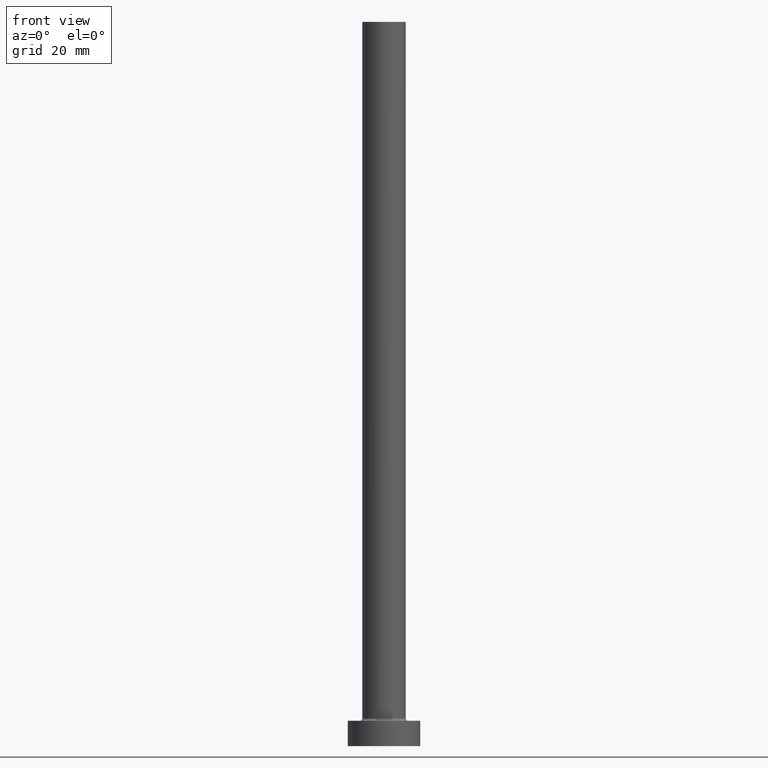
[diagram: clean part render]
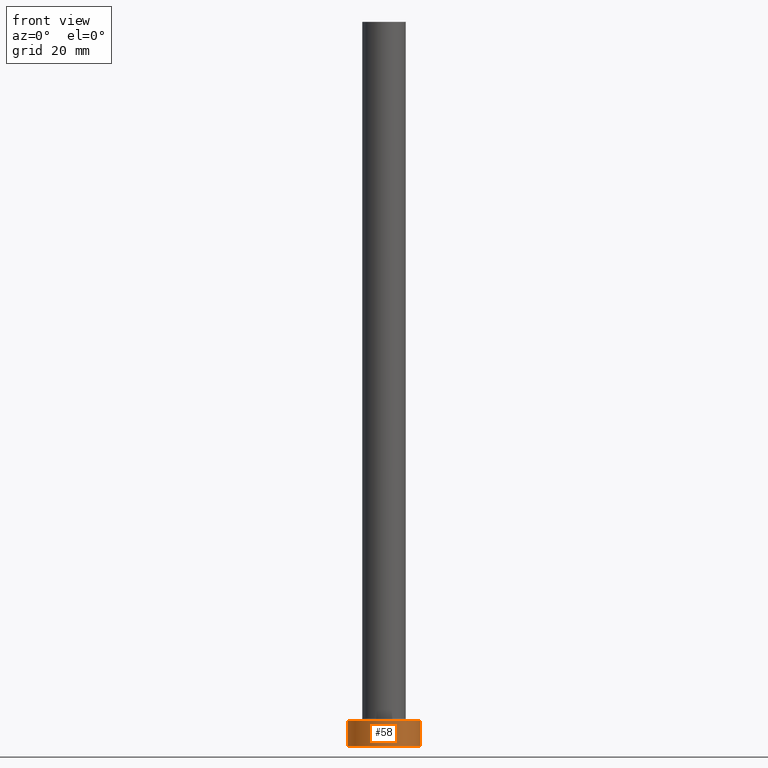
[diagram: same view with one face highlighted and labeled with its STEP entity id]
A machine part, front view. The second image highlights one B-rep face of the part: STEP entity #58.
In plain terms, the highlighted cylindrical surface (edge-blend (fillet) strip) has radius 10 mm, axis along (-0, -0, -1).
Its self-contained STEP definition (entity closure, byte-faithful):
#2 = DIRECTION ( 'NONE',  ( 1.000000000000000000, 0.000000000000000000, 0.000000000000000000 ) ) ;
#4 = CIRCLE ( 'NONE', #53, 10.00000000000000000 ) ;
#12 = ORIENTED_EDGE ( 'NONE', *, *, #333, .F. ) ;
#15 = VERTEX_POINT ( 'NONE', #106 ) ;
#19 = EDGE_CURVE ( 'NONE', #15, #83, #216, .T. ) ;
#35 = DIRECTION ( 'NONE',  ( -0.000000000000000000, -0.000000000000000000, -1.000000000000000000 ) ) ;
#39 = EDGE_CURVE ( 'NONE', #15, #114, #144, .T. ) ;
#42 = CARTESIAN_POINT ( 'NONE',  ( 0.000000000000000000, 0.000000000000000000, 0.000000000000000000 ) ) ;
#53 = AXIS2_PLACEMENT_3D ( 'NONE', #42, #355, #443 ) ;
#58 = ADVANCED_FACE ( 'NONE', ( #447 ), #268, .T. ) ;
#65 = VERTEX_POINT ( 'NONE', #410 ) ;
#83 = VERTEX_POINT ( 'NONE', #413 ) ;
#91 = CARTESIAN_POINT ( 'NONE',  ( -10.00000000000000000, 0.000000000000000000, 0.000000000000000000 ) ) ;
#94 = ORIENTED_EDGE ( 'NONE', *, *, #19, .F. ) ;
#106 = CARTESIAN_POINT ( 'NONE',  ( -10.00000000000000000, 0.000000000000000000, 7.000000000000000000 ) ) ;
#111 = CARTESIAN_POINT ( 'NONE',  ( -10.00000000000000000, 0.000000000000000000, 7.000000000000000000 ) ) ;
#114 = VERTEX_POINT ( 'NONE', #91 ) ;
#119 = CARTESIAN_POINT ( 'NONE',  ( 10.00000000000000000, 1.224646799147353256E-15, 7.000000000000000000 ) ) ;
#129 = DIRECTION ( 'NONE',  ( -0.000000000000000000, -0.000000000000000000, -1.000000000000000000 ) ) ;
#144 = LINE ( 'NONE', #111, #456 ) ;
#163 = EDGE_LOOP ( 'NONE', ( #12, #94, #188, #168 ) ) ;
#164 = DIRECTION ( 'NONE',  ( -1.000000000000000000, 0.000000000000000000, 0.000000000000000000 ) ) ;
#166 = CARTESIAN_POINT ( 'NONE',  ( 0.000000000000000000, 0.000000000000000000, 7.000000000000000000 ) ) ;
#168 = ORIENTED_EDGE ( 'NONE', *, *, #317, .T. ) ;
#180 = DIRECTION ( 'NONE',  ( 0.000000000000000000, 0.000000000000000000, 1.000000000000000000 ) ) ;
#188 = ORIENTED_EDGE ( 'NONE', *, *, #39, .T. ) ;
#213 = LINE ( 'NONE', #119, #313 ) ;
#216 = CIRCLE ( 'NONE', #401, 10.00000000000000000 ) ;
#232 = DIRECTION ( 'NONE',  ( -0.000000000000000000, -0.000000000000000000, -1.000000000000000000 ) ) ;
#268 = CYLINDRICAL_SURFACE ( 'NONE', #300, 10.00000000000000000 ) ;
#300 = AXIS2_PLACEMENT_3D ( 'NONE', #166, #232, #164 ) ;
#313 = VECTOR ( 'NONE', #35, 1000.000000000000000 ) ;
#317 = EDGE_CURVE ( 'NONE', #114, #65, #4, .T. ) ;
#333 = EDGE_CURVE ( 'NONE', #83, #65, #213, .T. ) ;
#355 = DIRECTION ( 'NONE',  ( 0.000000000000000000, 0.000000000000000000, 1.000000000000000000 ) ) ;
#393 = CARTESIAN_POINT ( 'NONE',  ( 0.000000000000000000, 0.000000000000000000, 7.000000000000000000 ) ) ;
#401 = AXIS2_PLACEMENT_3D ( 'NONE', #393, #180, #2 ) ;
#410 = CARTESIAN_POINT ( 'NONE',  ( 10.00000000000000000, 1.224646799147353256E-15, 0.000000000000000000 ) ) ;
#413 = CARTESIAN_POINT ( 'NONE',  ( 10.00000000000000000, 1.224646799147353256E-15, 7.000000000000000000 ) ) ;
#443 = DIRECTION ( 'NONE',  ( 1.000000000000000000, 0.000000000000000000, 0.000000000000000000 ) ) ;
#447 = FACE_OUTER_BOUND ( 'NONE', #163, .T. ) ;
#456 = VECTOR ( 'NONE', #129, 1000.000000000000000 ) ;